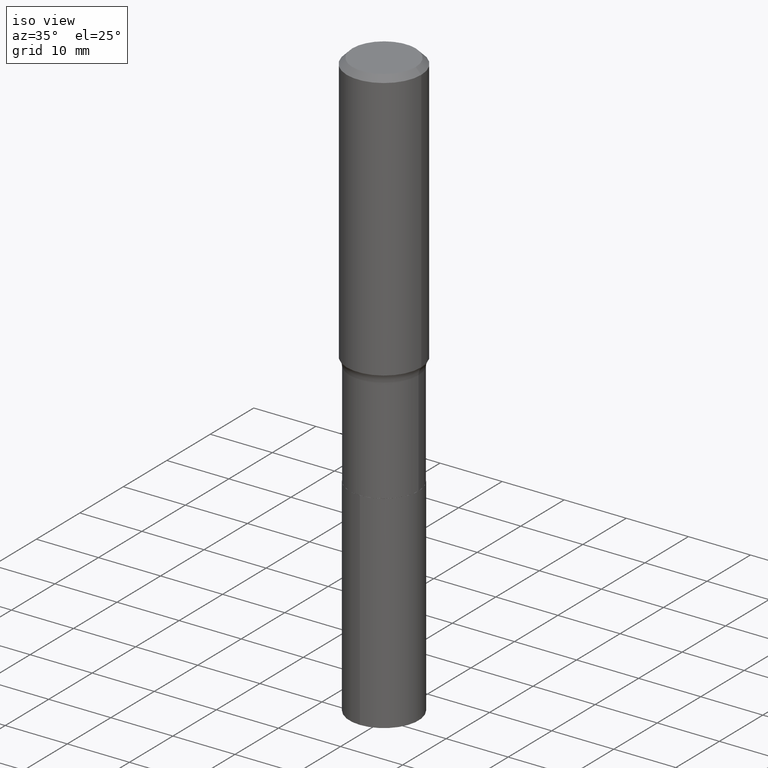
[diagram: clean part render]
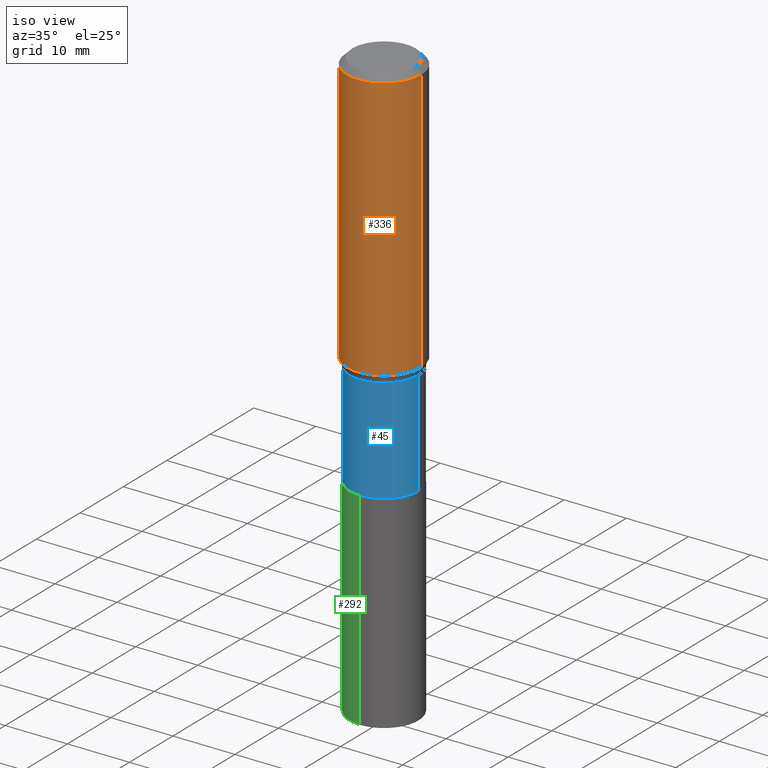
[diagram: same view with three faces highlighted in distinct colors, each labeled with its STEP entity id]
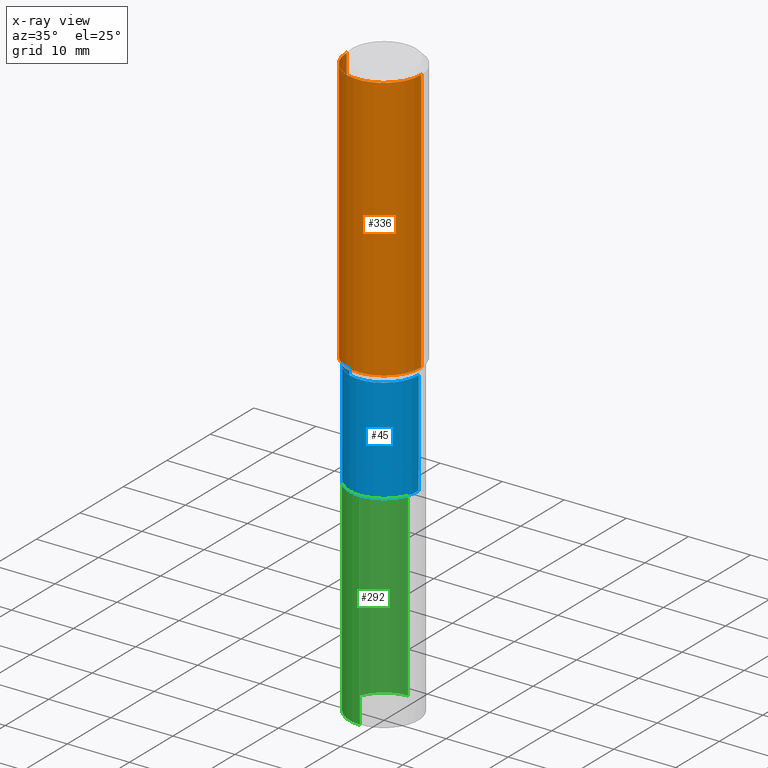
[diagram: x-ray of the same camera — body ghosted, the three highlighted faces saturated]
A machine part, iso view with three faces highlighted in distinct colors.
The next image is the same camera in x-ray (body ghosted, the three faces saturated) — at least one of them is partly hidden behind the body in this view.
Their STEP definitions:

[orange] entity #336 — the highlighted cylindrical surface (partial cylindrical patch) has radius 5.9995 mm, axis along (-0, 0, 1).
#13 = DIRECTION ( 'NONE',  ( 1.000000000000000000, -6.982962677686266711E-15, 0.000000000000000000 ) ) ;
#18 = CIRCLE ( 'NONE', #52, 0.2361999999999999933 ) ;
#24 = VERTEX_POINT ( 'NONE', #403 ) ;
#31 = CARTESIAN_POINT ( 'NONE',  ( 0.2361999999999999933, -1.773078968304709711E-15, -0.03543000000000023908 ) ) ;
#52 = AXIS2_PLACEMENT_3D ( 'NONE', #410, #226, #13 ) ;
#55 = ORIENTED_EDGE ( 'NONE', *, *, #204, .F. ) ;
#72 = CARTESIAN_POINT ( 'NONE',  ( -0.2362000000000001043, 1.678301941865357380E-15, -1.161852468318209317E-29 ) ) ;
#106 = CARTESIAN_POINT ( 'NONE',  ( 0.2362000000000001043, -1.649375784469496920E-15, 1.151752954443000508E-29 ) ) ;
#123 = FACE_OUTER_BOUND ( 'NONE', #377, .T. ) ;
#125 = DIRECTION ( 'NONE',  ( 1.000000000000000000, -6.982962677686266711E-15, 4.876176775795935793E-29 ) ) ;
#146 = DIRECTION ( 'NONE',  ( -2.445468806185136877E-29, 3.491481338843145188E-15, 1.000000000000000000 ) ) ;
#180 = DIRECTION ( 'NONE',  ( 1.000000000000000000, -6.982962677686266711E-15, 0.000000000000000000 ) ) ;
#193 = VECTOR ( 'NONE', #412, 39.37007874015748143 ) ;
#203 = ORIENTED_EDGE ( 'NONE', *, *, #428, .T. ) ;
#204 = EDGE_CURVE ( 'NONE', #368, #339, #293, .T. ) ;
#226 = DIRECTION ( 'NONE',  ( -2.445468806185136597E-29, 3.491481338843145583E-15, 1.000000000000000000 ) ) ;
#251 = EDGE_CURVE ( 'NONE', #339, #384, #18, .T. ) ;
#253 = AXIS2_PLACEMENT_3D ( 'NONE', #268, #452, #125 ) ;
#257 = DIRECTION ( 'NONE',  ( -2.445468806185136597E-29, 3.491481338843145583E-15, 1.000000000000000000 ) ) ;
#268 = CARTESIAN_POINT ( 'NONE',  ( 0.000000000000000000, 0.000000000000000000, 0.000000000000000000 ) ) ;
#270 = CYLINDRICAL_SURFACE ( 'NONE', #253, 0.2362000000000001043 ) ;
#293 = LINE ( 'NONE', #72, #193 ) ;
#336 = ADVANCED_FACE ( 'NONE', ( #123 ), #270, .T. ) ;
#339 = VERTEX_POINT ( 'NONE', #340 ) ;
#340 = CARTESIAN_POINT ( 'NONE',  ( -0.2361999999999999933, -1.371777914626985896E-15, -0.03543000000000023908 ) ) ;
#349 = ORIENTED_EDGE ( 'NONE', *, *, #382, .T. ) ;
#358 = CIRCLE ( 'NONE', #437, 0.2362000000000002153 ) ;
#368 = VERTEX_POINT ( 'NONE', #376 ) ;
#376 = CARTESIAN_POINT ( 'NONE',  ( -0.2362000000000002153, -4.298154587284115789E-15, -1.711725181704591314 ) ) ;
#377 = EDGE_LOOP ( 'NONE', ( #55, #203, #349, #415 ) ) ;
#379 = VECTOR ( 'NONE', #146, 39.37007874015748143 ) ;
#382 = EDGE_CURVE ( 'NONE', #24, #384, #464, .T. ) ;
#384 = VERTEX_POINT ( 'NONE', #31 ) ;
#403 = CARTESIAN_POINT ( 'NONE',  ( 0.2362000000000002153, -7.625832313618971075E-15, -1.711725181704591314 ) ) ;
#410 = CARTESIAN_POINT ( 'NONE',  ( 8.664295980313996991E-31, -1.237031838352134818E-16, -0.03543000000000023908 ) ) ;
#412 = DIRECTION ( 'NONE',  ( -2.445468806185136877E-29, 3.491481338843145188E-15, 1.000000000000000000 ) ) ;
#415 = ORIENTED_EDGE ( 'NONE', *, *, #251, .F. ) ;
#428 = EDGE_CURVE ( 'NONE', #368, #24, #358, .T. ) ;
#437 = AXIS2_PLACEMENT_3D ( 'NONE', #438, #257, #180 ) ;
#438 = CARTESIAN_POINT ( 'NONE',  ( 4.185970536620162731E-29, -5.976456529149473761E-15, -1.711725181704591314 ) ) ;
#452 = DIRECTION ( 'NONE',  ( -2.445468806185136597E-29, 3.491481338843145583E-15, 1.000000000000000000 ) ) ;
#464 = LINE ( 'NONE', #106, #379 ) ;

[blue] entity #45 — the highlighted cylindrical surface (partial cylindrical patch) has radius 5.5563 mm, axis along (-0, 0, 1).
#4 = CARTESIAN_POINT ( 'NONE',  ( -0.2187500000000000278, 1.554312234475219354E-15, -1.076017050993260762E-29 ) ) ;
#9 = CARTESIAN_POINT ( 'NONE',  ( 0.2187500000000000555, -9.993317888036847882E-15, -2.424700000000000522 ) ) ;
#11 = DIRECTION ( 'NONE',  ( -2.445468806185136597E-29, 3.491481338843145583E-15, 1.000000000000000000 ) ) ;
#12 = VECTOR ( 'NONE', #141, 39.37007874015748143 ) ;
#22 = ORIENTED_EDGE ( 'NONE', *, *, #218, .T. ) ;
#27 = DIRECTION ( 'NONE',  ( 1.000000000000000000, -6.982962677686269077E-15, 0.000000000000000000 ) ) ;
#32 = CARTESIAN_POINT ( 'NONE',  ( -0.2187499999999999445, -5.753881929924311929E-15, -1.761600000000000055 ) ) ;
#41 = VERTEX_POINT ( 'NONE', #32 ) ;
#45 = ADVANCED_FACE ( 'NONE', ( #138 ), #134, .T. ) ;
#58 = ORIENTED_EDGE ( 'NONE', *, *, #91, .F. ) ;
#62 = VERTEX_POINT ( 'NONE', #103 ) ;
#69 = VERTEX_POINT ( 'NONE', #391 ) ;
#91 = EDGE_CURVE ( 'NONE', #41, #69, #154, .T. ) ;
#103 = CARTESIAN_POINT ( 'NONE',  ( -0.2187500000000000555, -5.753881929924311140E-15, -2.424700000000000522 ) ) ;
#120 = DIRECTION ( 'NONE',  ( 1.000000000000000000, -6.982962677686270655E-15, 0.000000000000000000 ) ) ;
#134 = CYLINDRICAL_SURFACE ( 'NONE', #385, 0.2187500000000000278 ) ;
#138 = FACE_OUTER_BOUND ( 'NONE', #313, .T. ) ;
#141 = DIRECTION ( 'NONE',  ( -2.445468806185136877E-29, 3.491481338843145188E-15, 1.000000000000000000 ) ) ;
#143 = EDGE_CURVE ( 'NONE', #62, #305, #396, .T. ) ;
#154 = CIRCLE ( 'NONE', #447, 0.2187499999999999445 ) ;
#158 = LINE ( 'NONE', #328, #455 ) ;
#218 = EDGE_CURVE ( 'NONE', #305, #69, #158, .T. ) ;
#242 = ORIENTED_EDGE ( 'NONE', *, *, #434, .F. ) ;
#246 = CARTESIAN_POINT ( 'NONE',  ( 0.000000000000000000, 0.000000000000000000, 0.000000000000000000 ) ) ;
#262 = CARTESIAN_POINT ( 'NONE',  ( 5.929528214357101912E-29, -8.465794802292976250E-15, -2.424700000000000522 ) ) ;
#282 = DIRECTION ( 'NONE',  ( -2.445468806185136597E-29, 3.491481338843145583E-15, 1.000000000000000000 ) ) ;
#305 = VERTEX_POINT ( 'NONE', #9 ) ;
#313 = EDGE_LOOP ( 'NONE', ( #242, #347, #22, #58 ) ) ;
#318 = DIRECTION ( 'NONE',  ( 1.000000000000000000, -6.982962677686266711E-15, 4.876176775795935232E-29 ) ) ;
#328 = CARTESIAN_POINT ( 'NONE',  ( 0.2187500000000000278, -1.527523085743871040E-15, 1.066663669705361025E-29 ) ) ;
#347 = ORIENTED_EDGE ( 'NONE', *, *, #143, .T. ) ;
#352 = CARTESIAN_POINT ( 'NONE',  ( 4.307937848975737218E-29, -6.150593526506085920E-15, -1.761600000000000055 ) ) ;
#367 = DIRECTION ( 'NONE',  ( -2.445468806185136877E-29, 3.491481338843145188E-15, 1.000000000000000000 ) ) ;
#385 = AXIS2_PLACEMENT_3D ( 'NONE', #246, #282, #318 ) ;
#391 = CARTESIAN_POINT ( 'NONE',  ( 0.2187499999999999445, -7.678116612249955974E-15, -1.761600000000000055 ) ) ;
#393 = DIRECTION ( 'NONE',  ( -2.445468806185136597E-29, 3.491481338843145583E-15, 1.000000000000000000 ) ) ;
#396 = CIRCLE ( 'NONE', #425, 0.2187500000000000555 ) ;
#425 = AXIS2_PLACEMENT_3D ( 'NONE', #262, #11, #120 ) ;
#434 = EDGE_CURVE ( 'NONE', #62, #41, #461, .T. ) ;
#447 = AXIS2_PLACEMENT_3D ( 'NONE', #352, #393, #27 ) ;
#455 = VECTOR ( 'NONE', #367, 39.37007874015748143 ) ;
#461 = LINE ( 'NONE', #4, #12 ) ;

[green] entity #292 — the highlighted cylindrical surface (partial cylindrical patch) has radius 5.5562 mm, axis along (-0, 0, 1).
#16 = DIRECTION ( 'NONE',  ( -2.445419500462251328E-29, 3.491551947444624874E-15, 1.000000000000000000 ) ) ;
#30 = CIRCLE ( 'NONE', #388, 0.2187500000000000000 ) ;
#34 = CARTESIAN_POINT ( 'NONE',  ( 5.930750948760194713E-29, -8.467540542962398542E-15, -2.425200000000000689 ) ) ;
#40 = CARTESIAN_POINT ( 'NONE',  ( 1.554312234475294098E-15, 0.2187499999999869549, -3.740199999999999747 ) ) ;
#77 = CARTESIAN_POINT ( 'NONE',  ( 1.554312234475310270E-15, 0.2187499999999915068, -2.425200000000001577 ) ) ;
#83 = DIRECTION ( 'NONE',  ( -6.982962677686265133E-15, -1.000000000000000000, 3.746534391310989557E-15 ) ) ;
#87 = CARTESIAN_POINT ( 'NONE',  ( 1.554312234475278124E-15, 0.2187499999999915068, -2.425200000000001133 ) ) ;
#93 = ORIENTED_EDGE ( 'NONE', *, *, #184, .T. ) ;
#107 = AXIS2_PLACEMENT_3D ( 'NONE', #118, #337, #156 ) ;
#114 = DIRECTION ( 'NONE',  ( -2.445419500462251328E-29, 3.491551947444624874E-15, 1.000000000000000000 ) ) ;
#118 = CARTESIAN_POINT ( 'NONE',  ( 9.146477591868052127E-29, -1.305893135385207557E-14, -3.740199999999998859 ) ) ;
#132 = VERTEX_POINT ( 'NONE', #256 ) ;
#156 = DIRECTION ( 'NONE',  ( -6.982962677686265133E-15, -1.000000000000000000, 2.497689594207326371E-15 ) ) ;
#167 = VERTEX_POINT ( 'NONE', #77 ) ;
#177 = DIRECTION ( 'NONE',  ( -2.445419500462251328E-29, 3.491551947444624874E-15, 1.000000000000000000 ) ) ;
#184 = EDGE_CURVE ( 'NONE', #442, #132, #295, .T. ) ;
#191 = CARTESIAN_POINT ( 'NONE',  ( -1.527523085743811284E-15, -0.2187500000000084655, -2.425199999999999800 ) ) ;
#192 = FACE_OUTER_BOUND ( 'NONE', #200, .T. ) ;
#199 = LINE ( 'NONE', #87, #206 ) ;
#200 = EDGE_LOOP ( 'NONE', ( #383, #453, #93, #303 ) ) ;
#206 = VECTOR ( 'NONE', #235, 39.37007874015748143 ) ;
#223 = VECTOR ( 'NONE', #114, 39.37007874015748143 ) ;
#235 = DIRECTION ( 'NONE',  ( -2.445419500462251328E-29, 3.491551947444624874E-15, 1.000000000000000000 ) ) ;
#244 = VERTEX_POINT ( 'NONE', #40 ) ;
#256 = CARTESIAN_POINT ( 'NONE',  ( -1.527523085743811284E-15, -0.2187500000000084655, -2.425199999999999800 ) ) ;
#273 = AXIS2_PLACEMENT_3D ( 'NONE', #299, #16, #83 ) ;
#276 = EDGE_CURVE ( 'NONE', #244, #442, #327, .T. ) ;
#290 = DIRECTION ( 'NONE',  ( -6.982962677686265133E-15, -1.000000000000000000, 3.746534391310989557E-15 ) ) ;
#292 = ADVANCED_FACE ( 'NONE', ( #192 ), #333, .T. ) ;
#295 = LINE ( 'NONE', #191, #223 ) ;
#299 = CARTESIAN_POINT ( 'NONE',  ( 5.930750948760193592E-29, -8.467540542962398542E-15, -2.425200000000000244 ) ) ;
#303 = ORIENTED_EDGE ( 'NONE', *, *, #401, .F. ) ;
#324 = CARTESIAN_POINT ( 'NONE',  ( -1.527523085743778941E-15, -0.2187500000000130451, -3.740199999999998415 ) ) ;
#327 = CIRCLE ( 'NONE', #107, 0.2187500000000000000 ) ;
#333 = CYLINDRICAL_SURFACE ( 'NONE', #273, 0.2187500000000000000 ) ;
#337 = DIRECTION ( 'NONE',  ( -2.445419500462251328E-29, 3.491551947444624874E-15, 1.000000000000000000 ) ) ;
#361 = EDGE_CURVE ( 'NONE', #244, #167, #199, .T. ) ;
#383 = ORIENTED_EDGE ( 'NONE', *, *, #361, .F. ) ;
#388 = AXIS2_PLACEMENT_3D ( 'NONE', #34, #177, #290 ) ;
#401 = EDGE_CURVE ( 'NONE', #167, #132, #30, .T. ) ;
#442 = VERTEX_POINT ( 'NONE', #324 ) ;
#453 = ORIENTED_EDGE ( 'NONE', *, *, #276, .T. ) ;